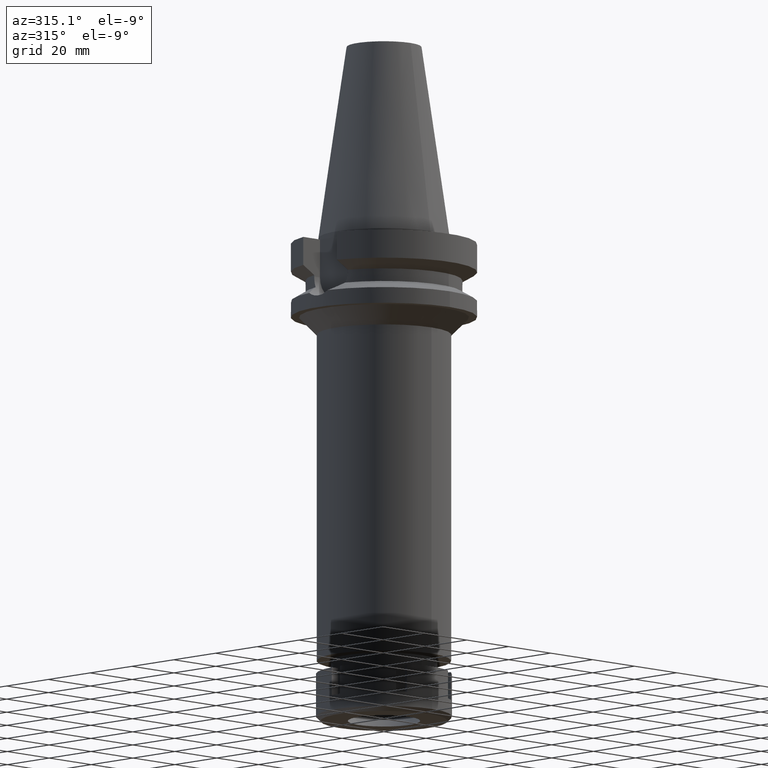
[diagram: clean part render]
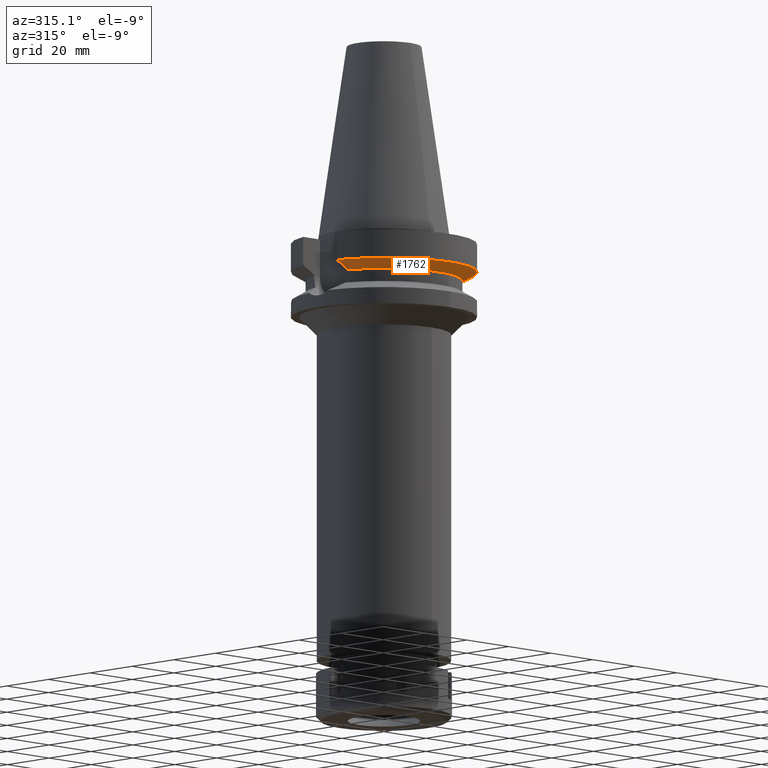
[diagram: same view with one face highlighted and labeled with its STEP entity id]
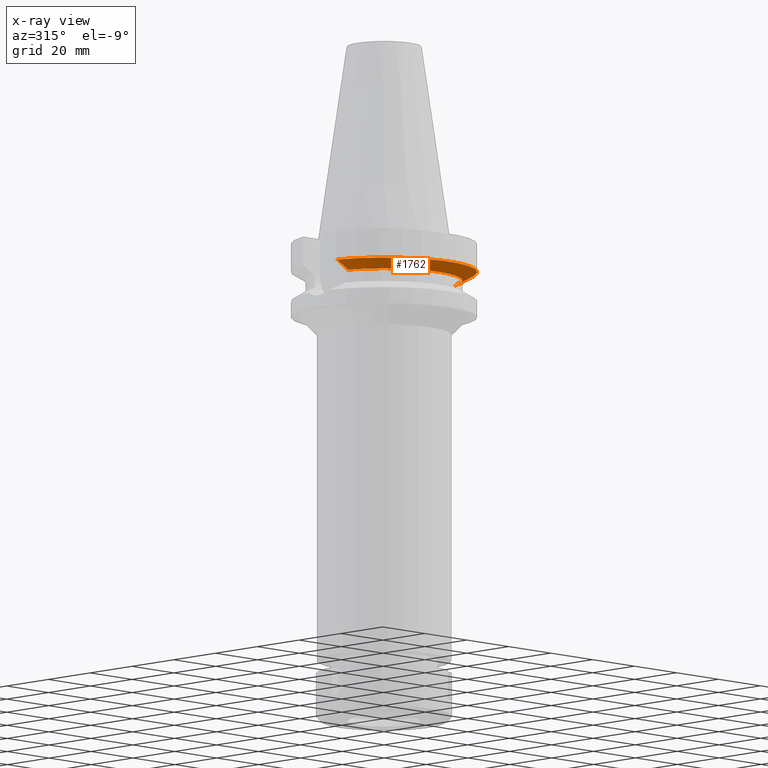
[diagram: x-ray of the same camera — body ghosted, the highlighted face saturated]
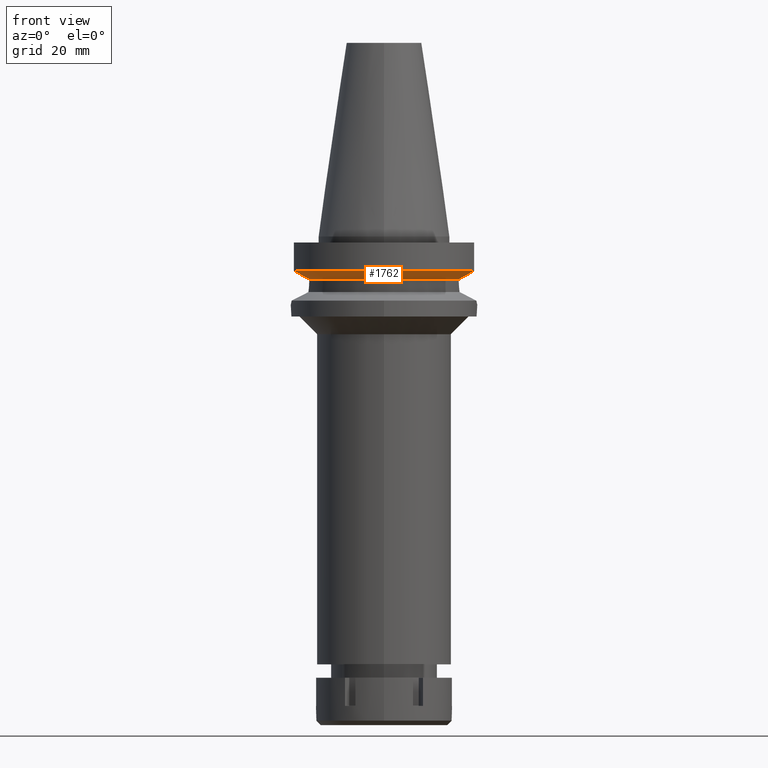
[diagram: same view with one face highlighted and labeled with its STEP entity id]
A machine part, auxiliary view. The second image highlights one B-rep face of the part: STEP entity #1762.
The next image is the same camera in x-ray: the body ghosted, the highlighted face saturated — about 0% of this face is hidden behind the body in this view.
A second angle (front view) of the same face is appended — the face is thin or edge-on in the first view.
In plain terms, the highlighted conical surface has half-angle 60 deg.
Its self-contained STEP definition (entity closure, byte-faithful):
#107 = DIRECTION ( 'NONE',  ( 0.0000000000000000000, 1.000000000000000000, 0.0000000000000000000 ) ) ;
#150 = CARTESIAN_POINT ( 'NONE',  ( 25.24772266958000344, -8.050000000000000711, -14.45225699861000024 ) ) ;
#227 = EDGE_CURVE ( 'NONE', #3313, #1593, #3234, .T. ) ;
#341 = CARTESIAN_POINT ( 'NONE',  ( 0.0000000000000000000, 1.065333950388000029E-14, -14.45225699861000024 ) ) ;
#384 = CARTESIAN_POINT ( 'NONE',  ( 0.0000000000000000000, 1.065333950388000029E-14, -13.00888132564000088 ) ) ;
#532 = EDGE_CURVE ( 'NONE', #2662, #1593, #2869, .T. ) ;
#684 = CARTESIAN_POINT ( 'NONE',  ( 28.57294951894145285, -8.050008280307146435, -12.61547990224312521 ) ) ;
#721 = CARTESIAN_POINT ( 'NONE',  ( -28.57292329137948528, -8.049998557331793592, -12.61549605472040270 ) ) ;
#765 = DIRECTION ( 'NONE',  ( 0.0000000000000000000, 0.0000000000000000000, 1.000000000000000000 ) ) ;
#781 = CARTESIAN_POINT ( 'NONE',  ( -30.45402291358000113, -8.049999278195999253, -11.56551215380000031 ) ) ;
#783 = CARTESIAN_POINT ( 'NONE',  ( 30.45402272279000044, -8.049999999999000622, -11.56550565266999975 ) ) ;
#802 = ORIENTED_EDGE ( 'NONE', *, *, #227, .F. ) ;
#838 = B_SPLINE_CURVE_WITH_KNOTS ( 'NONE', 3,
 ( #781, #721, #2476, #1363 ),
 .UNSPECIFIED., .F., .F.,
 ( 4, 4 ),
 ( 0.0000000000000000000, 1.000000000000000000 ),
 .UNSPECIFIED. ) ;
#865 = AXIS2_PLACEMENT_3D ( 'NONE', #341, #901, #2893 ) ;
#901 = DIRECTION ( 'NONE',  ( 0.0000000000000000000, 0.0000000000000000000, -1.000000000000000000 ) ) ;
#948 = VERTEX_POINT ( 'NONE', #2380 ) ;
#1363 = CARTESIAN_POINT ( 'NONE',  ( -25.24772413111999825, -8.049995416064998466, -14.45229202584999939 ) ) ;
#1593 = VERTEX_POINT ( 'NONE', #2709 ) ;
#1762 = ADVANCED_FACE ( 'NONE', ( #3198 ), #2694, .T. ) ;
#1791 = ORIENTED_EDGE ( 'NONE', *, *, #3372, .F. ) ;
#1865 = ORIENTED_EDGE ( 'NONE', *, *, #3163, .T. ) ;
#1930 = AXIS2_PLACEMENT_3D ( 'NONE', #2733, #765, #3040 ) ;
#2073 = EDGE_LOOP ( 'NONE', ( #1865, #1791, #3218, #802 ) ) ;
#2174 = CIRCLE ( 'NONE', #865, 26.50000000000000711 ) ;
#2380 = CARTESIAN_POINT ( 'NONE',  ( -25.24772413111999825, -8.049995416064998466, -14.45229202584999939 ) ) ;
#2476 = CARTESIAN_POINT ( 'NONE',  ( -26.83754616083559341, -8.049990821977567990, -13.57774888054535722 ) ) ;
#2645 = DIRECTION ( 'NONE',  ( 0.0000000000000000000, 0.0000000000000000000, 1.000000000000000000 ) ) ;
#2662 = VERTEX_POINT ( 'NONE', #150 ) ;
#2694 = CONICAL_SURFACE ( 'NONE', #3164, 29.00000000000000000, 1.047197551196400456 ) ;
#2709 = CARTESIAN_POINT ( 'NONE',  ( 30.45402272279000044, -8.049999999999000622, -11.56550565266999975 ) ) ;
#2733 = CARTESIAN_POINT ( 'NONE',  ( 0.0000000000000000000, 1.065333950388000029E-14, -11.56550565266999975 ) ) ;
#2752 = CARTESIAN_POINT ( 'NONE',  ( -30.45402291358000113, -8.049999278195999253, -11.56551215380000031 ) ) ;
#2869 = B_SPLINE_CURVE_WITH_KNOTS ( 'NONE', 3,
 ( #3227, #2947, #684, #783 ),
 .UNSPECIFIED., .F., .F.,
 ( 4, 4 ),
 ( 0.0000000000000000000, 1.000000000000000000 ),
 .UNSPECIFIED. ) ;
#2893 = DIRECTION ( 'NONE',  ( 0.9527442516822307583, -0.3037735849057093818, 0.0000000000000000000 ) ) ;
#2947 = CARTESIAN_POINT ( 'NONE',  ( 26.83757730459284119, -8.050003177712282465, -13.57772965054501491 ) ) ;
#3040 = DIRECTION ( 'NONE',  ( 0.0000000000000000000, -1.000000000000000000, 0.0000000000000000000 ) ) ;
#3163 = EDGE_CURVE ( 'NONE', #3313, #948, #838, .T. ) ;
#3164 = AXIS2_PLACEMENT_3D ( 'NONE', #384, #2645, #107 ) ;
#3198 = FACE_OUTER_BOUND ( 'NONE', #2073, .T. ) ;
#3218 = ORIENTED_EDGE ( 'NONE', *, *, #532, .T. ) ;
#3227 = CARTESIAN_POINT ( 'NONE',  ( 25.24772266958000344, -8.050000000000000711, -14.45225699861000024 ) ) ;
#3234 = CIRCLE ( 'NONE', #1930, 31.50000000000000000 ) ;
#3313 = VERTEX_POINT ( 'NONE', #2752 ) ;
#3372 = EDGE_CURVE ( 'NONE', #2662, #948, #2174, .T. ) ;